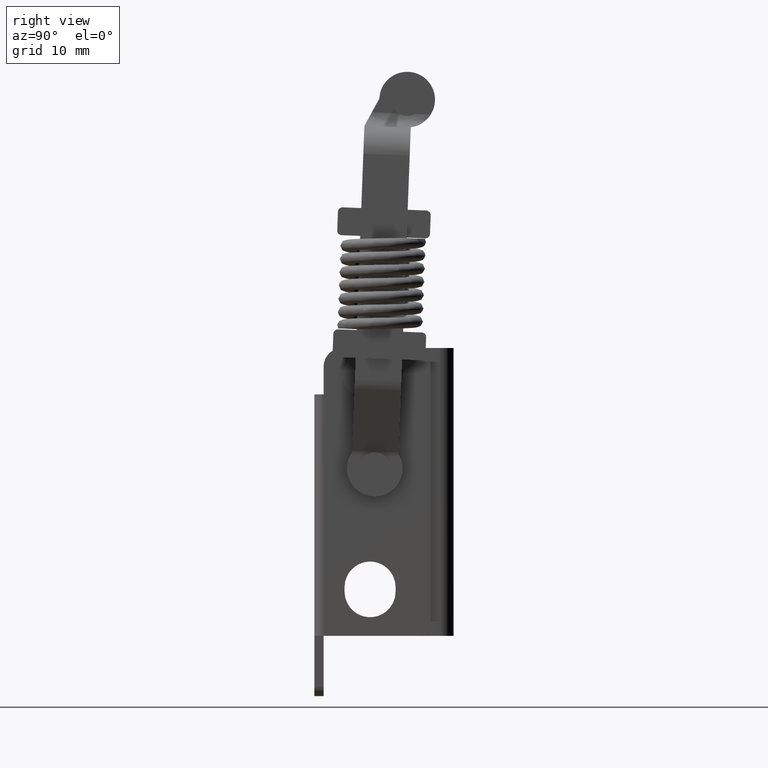
[diagram: clean part render]
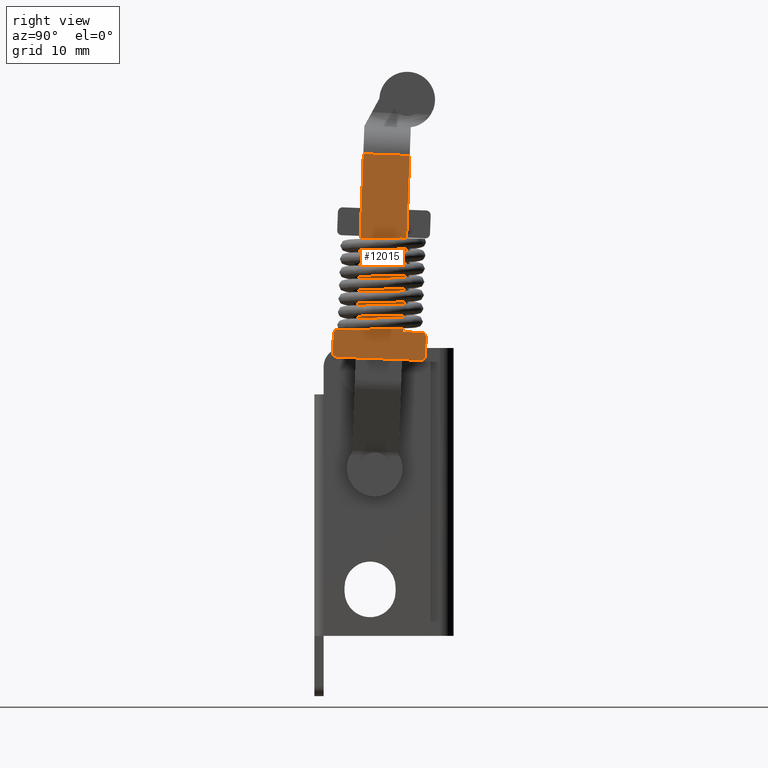
[diagram: same view with one face highlighted and labeled with its STEP entity id]
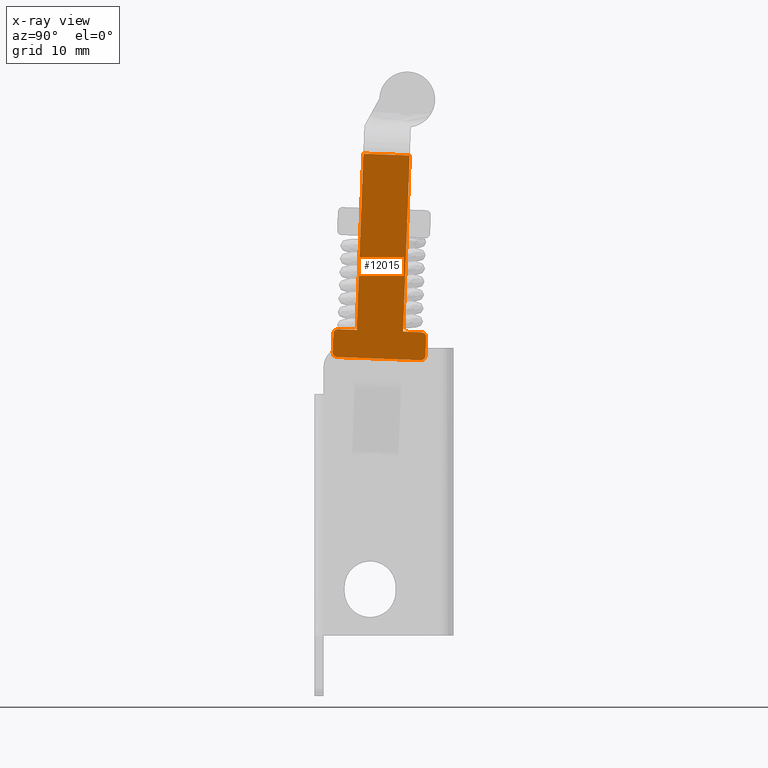
[diagram: x-ray of the same camera — body ghosted, the highlighted face saturated]
A machine part, right view. The second image highlights one B-rep face of the part: STEP entity #12015.
The next image is the same camera in x-ray: the body ghosted, the highlighted face saturated — about 0% of this face is hidden behind the body in this view.
In plain terms, the highlighted face is a freeform B-spline surface patch.
Its self-contained STEP definition (entity closure, byte-faithful):
#11220=CARTESIAN_POINT('',(-9.999999999973079,-11.505187885595459,13.750456453794200));
#11221=VERTEX_POINT('',#11220);
#11222=CARTESIAN_POINT('',(-9.999999999973079,-12.005187885595600,13.250456453794319));
#11223=VERTEX_POINT('',#11222);
#11224=CARTESIAN_POINT('',(-9.999999999973079,-11.505187885595459,13.750456453794200));
#11225=CARTESIAN_POINT('',(-9.999999999973028,-11.712294666782011,13.750456453794262));
#11226=CARTESIAN_POINT('',(-9.999999999973030,-11.858741276188780,13.604009844387569));
#11227=CARTESIAN_POINT('',(-9.999999999973028,-12.005187885595552,13.457563234980872));
#11228=CARTESIAN_POINT('',(-9.999999999973079,-12.005187885595600,13.250456453794319));
#11236=(BOUNDED_CURVE()B_SPLINE_CURVE(2,(#11224,#11225,#11226,#11227,#11228),.UNSPECIFIED.,.F.,.U.)B_SPLINE_CURVE_WITH_KNOTS((3,2,3),(0.0,0.500000000000000,1.0),.UNSPECIFIED.)CURVE()GEOMETRIC_REPRESENTATION_ITEM()RATIONAL_B_SPLINE_CURVE((1.0,0.923879532511283,1.0,0.923879532511283,1.0))REPRESENTATION_ITEM(''));
#11237=EDGE_CURVE('',#11221,#11223,#11236,.T.);
#11283=CARTESIAN_POINT('',(-9.999999999973079,-12.005187885596159,11.250456453794319));
#11284=VERTEX_POINT('',#11283);
#11285=CARTESIAN_POINT('',(-9.999999999973079,-11.505187885596300,10.750456453794200));
#11286=VERTEX_POINT('',#11285);
#11287=CARTESIAN_POINT('',(-9.999999999973079,-12.005187885596159,11.250456453794319));
#11288=CARTESIAN_POINT('',(-9.999999999973030,-12.005187885596213,11.043349672607738));
#11289=CARTESIAN_POINT('',(-9.999999999973030,-11.858741276189480,10.896903063200970));
#11290=CARTESIAN_POINT('',(-9.999999999973030,-11.712294666782741,10.750456453794198));
#11291=CARTESIAN_POINT('',(-9.999999999973079,-11.505187885596300,10.750456453794200));
#11299=(BOUNDED_CURVE()B_SPLINE_CURVE(2,(#11287,#11288,#11289,#11290,#11291),.UNSPECIFIED.,.F.,.U.)B_SPLINE_CURVE_WITH_KNOTS((3,2,3),(0.0,0.500000000000000,1.0),.UNSPECIFIED.)CURVE()GEOMETRIC_REPRESENTATION_ITEM()RATIONAL_B_SPLINE_CURVE((1.0,0.923879532511263,1.0,0.923879532511263,1.0))REPRESENTATION_ITEM(''));
#11300=EDGE_CURVE('',#11284,#11286,#11299,.T.);
#11346=CARTESIAN_POINT('',(-9.999999999973079,-2.005187885595605,13.250456453791520));
#11347=VERTEX_POINT('',#11346);
#11348=CARTESIAN_POINT('',(-9.999999999973079,-2.505187885595465,13.750456453791660));
#11349=VERTEX_POINT('',#11348);
#11350=CARTESIAN_POINT('',(-9.999999999973079,-2.005187885595605,13.250456453791520));
#11351=CARTESIAN_POINT('',(-9.999999999973031,-2.005187885595547,13.457563234978062));
#11352=CARTESIAN_POINT('',(-9.999999999973030,-2.151634495002232,13.604009844384830));
#11353=CARTESIAN_POINT('',(-9.999999999973031,-2.298081104408917,13.750456453791603));
#11354=CARTESIAN_POINT('',(-9.999999999973079,-2.505187885595465,13.750456453791660));
#11362=(BOUNDED_CURVE()B_SPLINE_CURVE(2,(#11350,#11351,#11352,#11353,#11354),.UNSPECIFIED.,.F.,.U.)B_SPLINE_CURVE_WITH_KNOTS((3,2,3),(0.0,0.500000000000000,1.0),.UNSPECIFIED.)CURVE()GEOMETRIC_REPRESENTATION_ITEM()RATIONAL_B_SPLINE_CURVE((1.0,0.923879532511287,1.0,0.923879532511287,1.0))REPRESENTATION_ITEM(''));
#11363=EDGE_CURVE('',#11347,#11349,#11362,.T.);
#11411=CARTESIAN_POINT('',(-9.999999999973079,-2.505187885596305,10.750456453791660));
#11412=VERTEX_POINT('',#11411);
#11413=CARTESIAN_POINT('',(-9.999999999973079,-2.005187885596165,11.250456453791520));
#11414=VERTEX_POINT('',#11413);
#11415=CARTESIAN_POINT('',(-9.999999999973079,-2.505187885596305,10.750456453791660));
#11416=CARTESIAN_POINT('',(-9.999999999973031,-2.005187885596306,10.750456453791660));
#11417=CARTESIAN_POINT('',(-9.999999999973079,-2.005187885596165,11.250456453791520));
#11425=(BOUNDED_CURVE()B_SPLINE_CURVE(2,(#11415,#11416,#11417),.UNSPECIFIED.,.F.,.U.)CURVE()GEOMETRIC_REPRESENTATION_ITEM()QUASI_UNIFORM_CURVE()RATIONAL_B_SPLINE_CURVE((1.0,0.707106781186647,1.0))REPRESENTATION_ITEM(''));
#11426=EDGE_CURVE('',#11412,#11414,#11425,.T.);
#11472=CARTESIAN_POINT('',(-9.999999999973079,-9.505187885590150,32.750456453793653));
#11473=VERTEX_POINT('',#11472);
#11489=CARTESIAN_POINT('',(-9.999999999973079,-4.505187885590150,32.750456453793653));
#11490=VERTEX_POINT('',#11489);
#11491=CARTESIAN_POINT('',(-9.999999999973079,-4.505187885590150,32.750456453793653));
#11492=CARTESIAN_POINT('',(-9.999999999973079,-9.505187885590150,32.750456453793653));
#11493=QUASI_UNIFORM_CURVE('',1,(#11491,#11492),.UNSPECIFIED.,.F.,.U.);
#11494=EDGE_CURVE('',#11490,#11473,#11493,.T.);
#11882=CARTESIAN_POINT('',(-9.999999999973030,-4.505187885595470,13.750456453792220));
#11883=VERTEX_POINT('',#11882);
#11884=CARTESIAN_POINT('',(-9.999999999973079,-2.505187885595465,13.750456453791660));
#11885=CARTESIAN_POINT('',(-9.999999999973030,-4.505187885595470,13.750456453792220));
#11886=QUASI_UNIFORM_CURVE('',1,(#11884,#11885),.UNSPECIFIED.,.F.,.U.);
#11887=EDGE_CURVE('',#11349,#11883,#11886,.T.);
#11904=CARTESIAN_POINT('',(-9.999999999973079,-2.005187885596165,11.250456453791520));
#11905=CARTESIAN_POINT('',(-9.999999999973079,-2.005187885595605,13.250456453791520));
#11906=QUASI_UNIFORM_CURVE('',1,(#11904,#11905),.UNSPECIFIED.,.F.,.U.);
#11907=EDGE_CURVE('',#11414,#11347,#11906,.T.);
#11922=CARTESIAN_POINT('',(-9.999999999973079,-11.505187885596300,10.750456453794200));
#11923=CARTESIAN_POINT('',(-9.999999999973079,-2.505187885596305,10.750456453791660));
#11924=QUASI_UNIFORM_CURVE('',1,(#11922,#11923),.UNSPECIFIED.,.F.,.U.);
#11925=EDGE_CURVE('',#11286,#11412,#11924,.T.);
#11938=CARTESIAN_POINT('',(-9.999999999973079,-12.005187885595600,13.250456453794319));
#11939=CARTESIAN_POINT('',(-9.999999999973079,-12.005187885596159,11.250456453794319));
#11940=QUASI_UNIFORM_CURVE('',1,(#11938,#11939),.UNSPECIFIED.,.F.,.U.);
#11941=EDGE_CURVE('',#11223,#11284,#11940,.T.);
#11954=CARTESIAN_POINT('',(-9.999999999973030,-9.505187885595460,13.750456453793619));
#11955=VERTEX_POINT('',#11954);
#11956=CARTESIAN_POINT('',(-9.999999999973030,-9.505187885595460,13.750456453793619));
#11957=CARTESIAN_POINT('',(-9.999999999973079,-11.505187885595459,13.750456453794200));
#11958=QUASI_UNIFORM_CURVE('',1,(#11956,#11957),.UNSPECIFIED.,.F.,.U.);
#11959=EDGE_CURVE('',#11955,#11221,#11958,.T.);
#11983=CARTESIAN_POINT('',(-9.999999999973079,-9.505187885590150,32.750456453793653));
#11984=CARTESIAN_POINT('',(-9.999999999973030,-9.505187885595460,13.750456453793619));
#11985=QUASI_UNIFORM_CURVE('',1,(#11983,#11984),.UNSPECIFIED.,.F.,.U.);
#11986=EDGE_CURVE('',#11473,#11955,#11985,.T.);
#11992=CARTESIAN_POINT('',(-9.999999999973079,-1.505687998850364,33.849357778195852));
#11993=CARTESIAN_POINT('',(-9.999999999973079,-12.504688129969271,33.849357778195852));
#11994=CARTESIAN_POINT('',(-9.999999999973079,-1.505687998850364,9.651557489733399));
#11995=CARTESIAN_POINT('',(-9.999999999973079,-12.504688129969271,9.651557489733399));
#11996=B_SPLINE_SURFACE_WITH_KNOTS('',1,1,((#11992,#11994),(#11993,#11995)),.UNSPECIFIED.,.F.,.F.,.U.,(2,2),(2,2),(0.0,10.999000131118910),(0.0,24.197800288462449),.UNSPECIFIED.);
#11997=ORIENTED_EDGE('',*,*,#11925,.T.);
#11998=ORIENTED_EDGE('',*,*,#11426,.T.);
#11999=ORIENTED_EDGE('',*,*,#11907,.T.);
#12000=ORIENTED_EDGE('',*,*,#11363,.T.);
#12001=ORIENTED_EDGE('',*,*,#11887,.T.);
#12002=CARTESIAN_POINT('',(-9.999999999973030,-4.505187885595470,13.750456453792220));
#12003=CARTESIAN_POINT('',(-9.999999999973079,-4.505187885590150,32.750456453793653));
#12004=QUASI_UNIFORM_CURVE('',1,(#12002,#12003),.UNSPECIFIED.,.F.,.U.);
#12005=EDGE_CURVE('',#11883,#11490,#12004,.T.);
#12006=ORIENTED_EDGE('',*,*,#12005,.T.);
#12007=ORIENTED_EDGE('',*,*,#11494,.T.);
#12008=ORIENTED_EDGE('',*,*,#11986,.T.);
#12009=ORIENTED_EDGE('',*,*,#11959,.T.);
#12010=ORIENTED_EDGE('',*,*,#11237,.T.);
#12011=ORIENTED_EDGE('',*,*,#11941,.T.);
#12012=ORIENTED_EDGE('',*,*,#11300,.T.);
#12013=EDGE_LOOP('',(#11997,#11998,#11999,#12000,#12001,#12006,#12007,#12008,#12009,#12010,#12011,#12012));
#12014=FACE_OUTER_BOUND('',#12013,.T.);
#12015=ADVANCED_FACE('',(#12014),#11996,.T.);